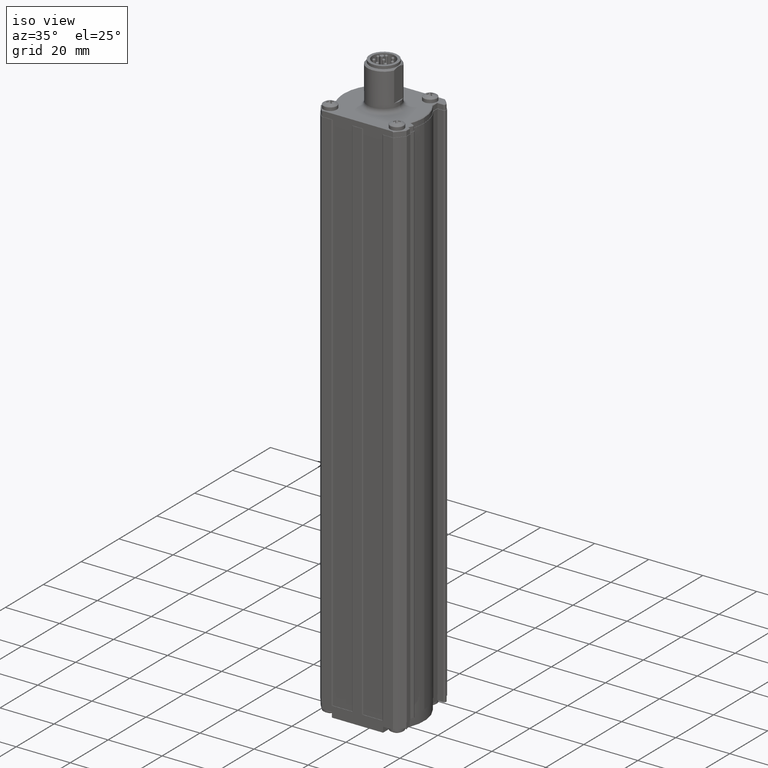
[diagram: clean part render]
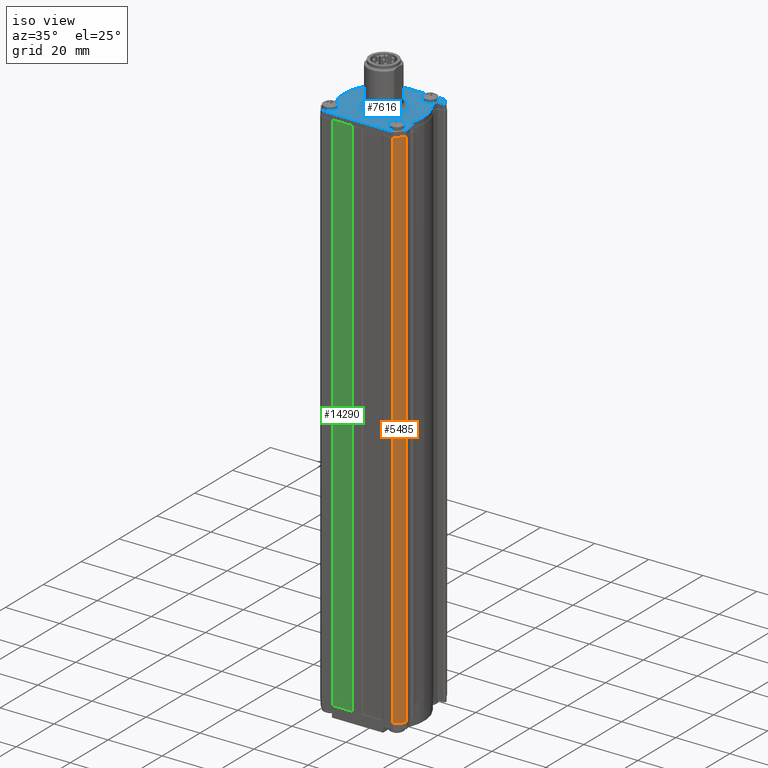
[diagram: same view with three faces highlighted in distinct colors, each labeled with its STEP entity id]
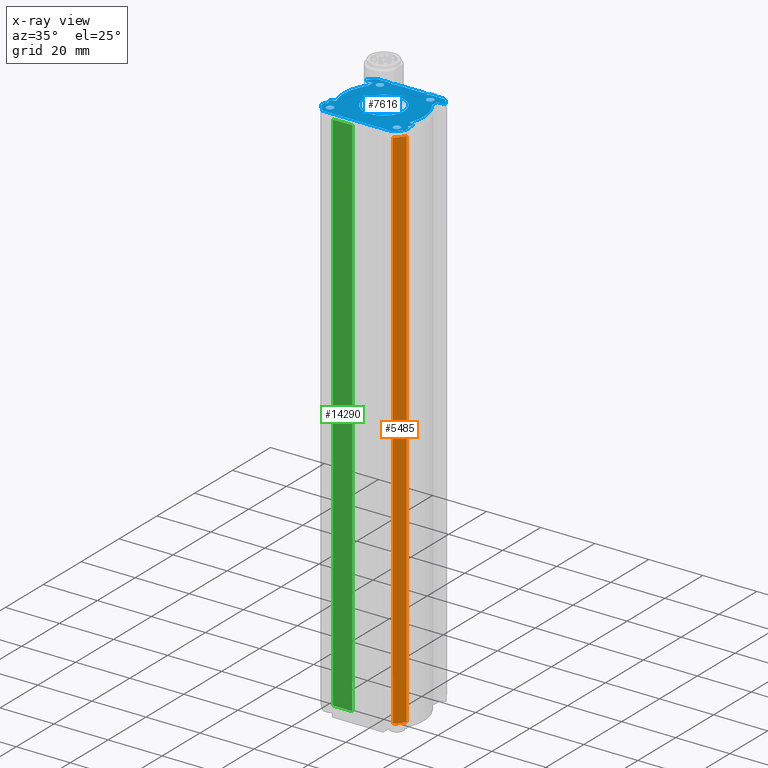
[diagram: x-ray of the same camera — body ghosted, the three highlighted faces saturated]
A machine part, iso view with three faces highlighted in distinct colors.
The next image is the same camera in x-ray (body ghosted, the three faces saturated) — at least one of them is partly hidden behind the body in this view.
Their STEP definitions:

[orange] entity #5485 — the highlighted cylindrical surface (partial cylindrical patch) has radius 19.25 mm, axis along (-0, 0, 1).
#83 = LINE ( 'NONE', #12793, #2938 ) ;
#1833 = EDGE_LOOP ( 'NONE', ( #4081, #12595, #15609, #5245 ) ) ;
#1915 = EDGE_CURVE ( 'NONE', #6531, #3093, #7012, .T. ) ;
#2655 = CYLINDRICAL_SURFACE ( 'NONE', #11659, 19.25000000000000000 ) ;
#2938 = VECTOR ( 'NONE', #14571, 1000.000000000000000 ) ;
#3093 = VERTEX_POINT ( 'NONE', #15743 ) ;
#3318 = CARTESIAN_POINT ( 'NONE',  ( 0.000000000000000000, -9.999999999999999799E-13, -1.999999999998947064 ) ) ;
#3708 = VERTEX_POINT ( 'NONE', #14768 ) ;
#4081 = ORIENTED_EDGE ( 'NONE', *, *, #1915, .T. ) ;
#5245 = ORIENTED_EDGE ( 'NONE', *, *, #16320, .T. ) ;
#5456 = CARTESIAN_POINT ( 'NONE',  ( 0.000000000000000000, -9.999999999999999799E-13, -197.9999999999989484 ) ) ;
#5485 = ADVANCED_FACE ( 'NONE', ( #12469 ), #2655, .T. ) ;
#5682 = CIRCLE ( 'NONE', #13147, 19.25000000000000000 ) ;
#5814 = DIRECTION ( 'NONE',  ( -0.000000000000000000, 0.000000000000000000, 1.000000000000000000 ) ) ;
#6531 = VERTEX_POINT ( 'NONE', #11390 ) ;
#7012 = CIRCLE ( 'NONE', #10305, 19.25000000000000000 ) ;
#7050 = CARTESIAN_POINT ( 'NONE',  ( 13.21221026172387525, -14.00000000000094680, -197.9999999999989484 ) ) ;
#7420 = DIRECTION ( 'NONE',  ( -1.000000000000000000, -4.000000000000003466E-15, 0.000000000000000000 ) ) ;
#7724 = EDGE_CURVE ( 'NONE', #3708, #14582, #5682, .T. ) ;
#8516 = CARTESIAN_POINT ( 'NONE',  ( 16.00000000000004263, -10.70338731430477530, -197.9999999999989484 ) ) ;
#9009 = DIRECTION ( 'NONE',  ( 0.000000000000000000, 0.000000000000000000, -1.000000000000000000 ) ) ;
#9657 = DIRECTION ( 'NONE',  ( -0.000000000000000000, 0.000000000000000000, 1.000000000000000000 ) ) ;
#9933 = LINE ( 'NONE', #8516, #14842 ) ;
#10079 = CARTESIAN_POINT ( 'NONE',  ( 0.000000000000000000, -9.999999999999999799E-13, -197.9999999999989484 ) ) ;
#10305 = AXIS2_PLACEMENT_3D ( 'NONE', #3318, #9009, #7420 ) ;
#10971 = DIRECTION ( 'NONE',  ( 1.000000000000000000, 4.000000000000003466E-15, 0.000000000000000000 ) ) ;
#11390 = CARTESIAN_POINT ( 'NONE',  ( 16.00000000000004263, -10.70338731430477530, -1.999999999998947064 ) ) ;
#11393 = DIRECTION ( 'NONE',  ( 0.000000000000000000, 0.000000000000000000, -1.000000000000000000 ) ) ;
#11659 = AXIS2_PLACEMENT_3D ( 'NONE', #5456, #9657, #10971 ) ;
#12469 = FACE_OUTER_BOUND ( 'NONE', #1833, .T. ) ;
#12595 = ORIENTED_EDGE ( 'NONE', *, *, #17661, .F. ) ;
#12793 = CARTESIAN_POINT ( 'NONE',  ( 13.21221026172387525, -14.00000000000094680, -197.9999999999989484 ) ) ;
#13147 = AXIS2_PLACEMENT_3D ( 'NONE', #10079, #11393, #15794 ) ;
#14571 = DIRECTION ( 'NONE',  ( -0.000000000000000000, 0.000000000000000000, 1.000000000000000000 ) ) ;
#14582 = VERTEX_POINT ( 'NONE', #7050 ) ;
#14768 = CARTESIAN_POINT ( 'NONE',  ( 16.00000000000004263, -10.70338731430477530, -197.9999999999989484 ) ) ;
#14842 = VECTOR ( 'NONE', #5814, 1000.000000000000000 ) ;
#15609 = ORIENTED_EDGE ( 'NONE', *, *, #7724, .F. ) ;
#15743 = CARTESIAN_POINT ( 'NONE',  ( 13.21221026172387525, -14.00000000000094680, -1.999999999998947064 ) ) ;
#15794 = DIRECTION ( 'NONE',  ( -1.000000000000000000, -4.000000000000003466E-15, 0.000000000000000000 ) ) ;
#16320 = EDGE_CURVE ( 'NONE', #3708, #6531, #9933, .T. ) ;
#17661 = EDGE_CURVE ( 'NONE', #14582, #3093, #83, .T. ) ;

[blue] entity #7616 — the highlighted planar face has unit normal (-0, 0, -1).
#29 = CARTESIAN_POINT ( 'NONE',  ( -14.63668049820835115, -8.448525551442942927, 0.000000000000000000 ) ) ;
#44 = VECTOR ( 'NONE', #212, 1000.000000000000000 ) ;
#100 = CARTESIAN_POINT ( 'NONE',  ( 11.94999999999999218, 8.560811877385422264, 0.000000000000000000 ) ) ;
#106 = DIRECTION ( 'NONE',  ( 1.000000000000000078E-15, -1.000000000000000000, 0.000000000000000000 ) ) ;
#212 = DIRECTION ( 'NONE',  ( 1.000000000000000000, 8.533520049141744836E-16, -0.000000000000000000 ) ) ;
#303 = DIRECTION ( 'NONE',  ( -0.000000000000000000, 0.000000000000000000, 1.000000000000000000 ) ) ;
#329 = CIRCLE ( 'NONE', #14961, 0.2999999999999947153 ) ;
#351 = CARTESIAN_POINT ( 'NONE',  ( 9.299999999999988276, 11.24999999999900879, 0.000000000000000000 ) ) ;
#468 = CIRCLE ( 'NONE', #10914, 1.299999999999999156 ) ;
#547 = VERTEX_POINT ( 'NONE', #4440 ) ;
#577 = VERTEX_POINT ( 'NONE', #8822 ) ;
#619 = ORIENTED_EDGE ( 'NONE', *, *, #17704, .F. ) ;
#680 = ORIENTED_EDGE ( 'NONE', *, *, #944, .F. ) ;
#780 = ORIENTED_EDGE ( 'NONE', *, *, #885, .T. ) ;
#848 = EDGE_CURVE ( 'NONE', #3926, #547, #11153, .T. ) ;
#856 = AXIS2_PLACEMENT_3D ( 'NONE', #14588, #3368, #7654 ) ;
#857 = VECTOR ( 'NONE', #18265, 1000.000000000000000 ) ;
#885 = EDGE_CURVE ( 'NONE', #13658, #3611, #6000, .T. ) ;
#921 = ORIENTED_EDGE ( 'NONE', *, *, #17668, .T. ) ;
#944 = EDGE_CURVE ( 'NONE', #13077, #16229, #15034, .T. ) ;
#979 = EDGE_CURVE ( 'NONE', #3611, #11704, #1883, .T. ) ;
#1038 = EDGE_CURVE ( 'NONE', #4096, #10235, #13736, .T. ) ;
#1048 = VERTEX_POINT ( 'NONE', #3456 ) ;
#1068 = DIRECTION ( 'NONE',  ( -0.000000000000000000, 0.000000000000000000, 1.000000000000000000 ) ) ;
#1101 = LINE ( 'NONE', #16921, #16613 ) ;
#1143 = ORIENTED_EDGE ( 'NONE', *, *, #9157, .T. ) ;
#1391 = CARTESIAN_POINT ( 'NONE',  ( 15.69999999999999929, -9.843138737920049907E-13, 0.000000000000000000 ) ) ;
#1399 = VERTEX_POINT ( 'NONE', #1842 ) ;
#1437 = EDGE_CURVE ( 'NONE', #6988, #2430, #4298, .T. ) ;
#1549 = CARTESIAN_POINT ( 'NONE',  ( -14.65000000000001279, 11.44999999999898677, 0.000000000000000000 ) ) ;
#1556 = VERTEX_POINT ( 'NONE', #3976 ) ;
#1573 = FACE_BOUND ( 'NONE', #16758, .T. ) ;
#1613 = CARTESIAN_POINT ( 'NONE',  ( 12.87992624202483327, -13.90000000000098623, 0.000000000000000000 ) ) ;
#1652 = CARTESIAN_POINT ( 'NONE',  ( 14.34999999999998721, 11.44999999999901519, 0.000000000000000000 ) ) ;
#1715 = ORIENTED_EDGE ( 'NONE', *, *, #1437, .T. ) ;
#1759 = DIRECTION ( 'NONE',  ( -0.000000000000000000, 0.000000000000000000, 1.000000000000000000 ) ) ;
#1842 = CARTESIAN_POINT ( 'NONE',  ( 14.64999999999998792, 11.44999999999901519, 0.000000000000000000 ) ) ;
#1843 = DIRECTION ( 'NONE',  ( -0.000000000000000000, 0.000000000000000000, 1.000000000000000000 ) ) ;
#1867 = CIRCLE ( 'NONE', #18302, 1.299999999999999156 ) ;
#1883 = CIRCLE ( 'NONE', #4270, 14.69999999999999929 ) ;
#1962 = VERTEX_POINT ( 'NONE', #6022 ) ;
#1972 = VECTOR ( 'NONE', #12421, 999.9999999999998863 ) ;
#2033 = AXIS2_PLACEMENT_3D ( 'NONE', #11578, #1759, #12978 ) ;
#2049 = AXIS2_PLACEMENT_3D ( 'NONE', #8826, #17180, #10055 ) ;
#2109 = ORIENTED_EDGE ( 'NONE', *, *, #8394, .T. ) ;
#2338 = CARTESIAN_POINT ( 'NONE',  ( 15.30989780377040788, -6.412833597942434238, 0.000000000000000000 ) ) ;
#2350 = CARTESIAN_POINT ( 'NONE',  ( -14.35000000000001208, 11.44999999999898677, 0.000000000000000000 ) ) ;
#2380 = DIRECTION ( 'NONE',  ( 1.000000000000000000, 1.334402673828314029E-15, 0.000000000000000000 ) ) ;
#2430 = VERTEX_POINT ( 'NONE', #8012 ) ;
#2464 = CIRCLE ( 'NONE', #13208, 7.500000000000000000 ) ;
#2509 = CARTESIAN_POINT ( 'NONE',  ( 0.1686541691351557959, -0.3066851337022108992, 0.000000000000000000 ) ) ;
#2522 = CARTESIAN_POINT ( 'NONE',  ( -6.500000000000014211, 14.74999999999899281, 0.000000000000000000 ) ) ;
#2532 = EDGE_CURVE ( 'NONE', #7232, #13472, #3593, .T. ) ;
#2582 = CIRCLE ( 'NONE', #8828, 1.299999999999999156 ) ;
#2677 = CARTESIAN_POINT ( 'NONE',  ( 0.000000000000000000, -1.000013873792005015E-12, 0.000000000000000000 ) ) ;
#2684 = VERTEX_POINT ( 'NONE', #8848 ) ;
#2836 = CARTESIAN_POINT ( 'NONE',  ( 0.03087135178059822668, 0.07272834712750111952, 0.000000000000000000 ) ) ;
#2906 = EDGE_CURVE ( 'NONE', #10209, #11727, #10746, .T. ) ;
#3108 = VECTOR ( 'NONE', #12333, 1000.000000000000000 ) ;
#3352 = ORIENTED_EDGE ( 'NONE', *, *, #3691, .T. ) ;
#3368 = DIRECTION ( 'NONE',  ( -0.000000000000000000, 0.000000000000000000, 1.000000000000000000 ) ) ;
#3440 = CARTESIAN_POINT ( 'NONE',  ( -15.16660934841539365, -6.747885659417485194, 0.000000000000000000 ) ) ;
#3441 = ORIENTED_EDGE ( 'NONE', *, *, #1038, .T. ) ;
#3456 = CARTESIAN_POINT ( 'NONE',  ( -14.69999999999999929, -1.014713873792004942E-12, 0.000000000000000000 ) ) ;
#3487 = CIRCLE ( 'NONE', #5873, 18.89999999999999858 ) ;
#3533 = VECTOR ( 'NONE', #11302, 1000.000000000000000 ) ;
#3558 = DIRECTION ( 'NONE',  ( -0.000000000000000000, 0.000000000000000000, 1.000000000000000000 ) ) ;
#3593 = CIRCLE ( 'NONE', #10447, 7.500000000000000000 ) ;
#3611 = VERTEX_POINT ( 'NONE', #17041 ) ;
#3675 = VECTOR ( 'NONE', #15370, 1000.000000000000000 ) ;
#3691 = EDGE_CURVE ( 'NONE', #547, #1048, #17295, .T. ) ;
#3704 = EDGE_CURVE ( 'NONE', #18197, #13865, #6221, .T. ) ;
#3710 = DIRECTION ( 'NONE',  ( 1.000000000000000000, 8.533520049141744836E-16, -0.000000000000000000 ) ) ;
#3755 = VERTEX_POINT ( 'NONE', #8873 ) ;
#3782 = CARTESIAN_POINT ( 'NONE',  ( 7.999999999999989342, 11.24999999999900879, 0.000000000000000000 ) ) ;
#3796 = DIRECTION ( 'NONE',  ( -1.000000000000000000, -1.000000000000003036E-15, 0.000000000000000000 ) ) ;
#3814 = CARTESIAN_POINT ( 'NONE',  ( 0.000000000000000000, -1.000013873792005015E-12, 0.000000000000000000 ) ) ;
#3926 = VERTEX_POINT ( 'NONE', #17863 ) ;
#3958 = CARTESIAN_POINT ( 'NONE',  ( -11.95000000000000107, -9.941330519336953010E-13, 0.000000000000000000 ) ) ;
#3976 = CARTESIAN_POINT ( 'NONE',  ( 10.59999999999998899, 11.24999999999901057, 0.000000000000000000 ) ) ;
#4028 = CARTESIAN_POINT ( 'NONE',  ( -1.115000000000000171E-14, 11.14999999999900027, 0.000000000000000000 ) ) ;
#4061 = EDGE_CURVE ( 'NONE', #9686, #17305, #7710, .T. ) ;
#4096 = VERTEX_POINT ( 'NONE', #13599 ) ;
#4122 = VECTOR ( 'NONE', #16821, 1000.000000000000000 ) ;
#4128 = ORIENTED_EDGE ( 'NONE', *, *, #17468, .T. ) ;
#4216 = AXIS2_PLACEMENT_3D ( 'NONE', #3440, #6059, #7544 ) ;
#4270 = AXIS2_PLACEMENT_3D ( 'NONE', #13016, #4413, #14241 ) ;
#4298 = CIRCLE ( 'NONE', #8473, 18.95000000000000284 ) ;
#4321 = CARTESIAN_POINT ( 'NONE',  ( 12.52946527191002524, 14.14999999999901270, 0.000000000000000000 ) ) ;
#4407 = CIRCLE ( 'NONE', #5597, 1.299999999999999156 ) ;
#4413 = DIRECTION ( 'NONE',  ( -0.000000000000000000, 0.000000000000000000, 1.000000000000000000 ) ) ;
#4440 = CARTESIAN_POINT ( 'NONE',  ( -11.95000000000000995, 8.560811877385379631, 0.000000000000000000 ) ) ;
#4480 = AXIS2_PLACEMENT_3D ( 'NONE', #12976, #5781, #16935 ) ;
#4725 = VERTEX_POINT ( 'NONE', #6828 ) ;
#4748 = LINE ( 'NONE', #4932, #10713 ) ;
#4856 = CARTESIAN_POINT ( 'NONE',  ( 0.03999999999999753059, 0.06928203230175072891, 0.000000000000000000 ) ) ;
#4909 = DIRECTION ( 'NONE',  ( -1.000000000000000000, -2.891205793294729504E-15, 0.000000000000000000 ) ) ;
#4919 = CARTESIAN_POINT ( 'NONE',  ( 0.000000000000000000, -1.000013873792005015E-12, 0.000000000000000000 ) ) ;
#4923 = CARTESIAN_POINT ( 'NONE',  ( 12.37500000000001066, -10.70000000000098694, 0.000000000000000000 ) ) ;
#4932 = CARTESIAN_POINT ( 'NONE',  ( 12.82916599004002478, 14.14999999999901270, 0.000000000000000000 ) ) ;
#4941 = CARTESIAN_POINT ( 'NONE',  ( -15.46660934841539259, -6.747885659417486082, 0.000000000000000000 ) ) ;
#5072 = AXIS2_PLACEMENT_3D ( 'NONE', #10991, #8087, #10809 ) ;
#5131 = DIRECTION ( 'NONE',  ( -0.8660254037844389297, 0.4999999999999993894, 0.000000000000000000 ) ) ;
#5212 = ORIENTED_EDGE ( 'NONE', *, *, #15679, .F. ) ;
#5249 = AXIS2_PLACEMENT_3D ( 'NONE', #9053, #6158, #17856 ) ;
#5317 = CIRCLE ( 'NONE', #2033, 14.69999999999999929 ) ;
#5590 = DIRECTION ( 'NONE',  ( -1.000000000000000000, -1.000000000000003036E-15, 0.000000000000000000 ) ) ;
#5597 = AXIS2_PLACEMENT_3D ( 'NONE', #17233, #15727, #6175 ) ;
#5781 = DIRECTION ( 'NONE',  ( -0.000000000000000000, 0.000000000000000000, -1.000000000000000000 ) ) ;
#5873 = AXIS2_PLACEMENT_3D ( 'NONE', #17084, #11269, #8640 ) ;
#5889 = CARTESIAN_POINT ( 'NONE',  ( -15.16660934841539365, -6.747885659417485194, 0.000000000000000000 ) ) ;
#5932 = AXIS2_PLACEMENT_3D ( 'NONE', #351, #1843, #10537 ) ;
#6000 = LINE ( 'NONE', #2836, #11753 ) ;
#6019 = EDGE_CURVE ( 'NONE', #8093, #14991, #7098, .T. ) ;
#6022 = CARTESIAN_POINT ( 'NONE',  ( 15.70000000000000995, -8.972023183207793906, 0.000000000000000000 ) ) ;
#6059 = DIRECTION ( 'NONE',  ( -0.000000000000000000, 0.000000000000000000, 1.000000000000000000 ) ) ;
#6091 = CARTESIAN_POINT ( 'NONE',  ( 14.34999999999998899, 11.14999999999901448, 0.000000000000000000 ) ) ;
#6129 = ORIENTED_EDGE ( 'NONE', *, *, #12351, .T. ) ;
#6158 = DIRECTION ( 'NONE',  ( -0.000000000000000000, 0.000000000000000000, 1.000000000000000000 ) ) ;
#6175 = DIRECTION ( 'NONE',  ( 1.000000000000000000, 1.334402673828314029E-15, 0.000000000000000000 ) ) ;
#6199 = VERTEX_POINT ( 'NONE', #17687 ) ;
#6221 = CIRCLE ( 'NONE', #17001, 0.3000000000000051514 ) ;
#6248 = EDGE_LOOP ( 'NONE', ( #3441, #13307, #11422, #1715, #4128, #1143, #11401, #2109, #780, #15596, #9860, #7412, #14805, #14070, #6129, #13313, #680, #619, #8716, #6883, #10080, #12369, #7187, #12870, #14809, #3352, #921, #16225, #13678, #12146, #6612, #8696 ) ) ;
#6543 = DIRECTION ( 'NONE',  ( 1.000000000000000000, 1.734723475976807094E-15, 0.000000000000000000 ) ) ;
#6596 = EDGE_CURVE ( 'NONE', #1556, #8438, #8603, .T. ) ;
#6612 = ORIENTED_EDGE ( 'NONE', *, *, #7391, .T. ) ;
#6636 = EDGE_CURVE ( 'NONE', #14991, #3926, #13069, .T. ) ;
#6709 = LINE ( 'NONE', #2509, #1972 ) ;
#6828 = CARTESIAN_POINT ( 'NONE',  ( -5.700000000000014388, 14.14999999999899494, 0.000000000000000000 ) ) ;
#6847 = CARTESIAN_POINT ( 'NONE',  ( 7.299999999999986500, 14.14999999999900737, 0.000000000000000000 ) ) ;
#6883 = ORIENTED_EDGE ( 'NONE', *, *, #15511, .F. ) ;
#6903 = PLANE ( 'NONE',  #4480 ) ;
#6988 = VERTEX_POINT ( 'NONE', #1613 ) ;
#7098 = CIRCLE ( 'NONE', #15485, 0.3000000000000051514 ) ;
#7166 = EDGE_LOOP ( 'NONE', ( #17467, #8632 ) ) ;
#7187 = ORIENTED_EDGE ( 'NONE', *, *, #6019, .T. ) ;
#7194 = AXIS2_PLACEMENT_3D ( 'NONE', #11882, #3558, #16199 ) ;
#7197 = DIRECTION ( 'NONE',  ( -0.000000000000000000, 0.000000000000000000, 1.000000000000000000 ) ) ;
#7215 = DIRECTION ( 'NONE',  ( -0.9205048534524431503, 0.3907311284892669434, 0.000000000000000000 ) ) ;
#7232 = VERTEX_POINT ( 'NONE', #17323 ) ;
#7262 = DIRECTION ( 'NONE',  ( -1.000000000000000000, 0.000000000000000000, 0.000000000000000000 ) ) ;
#7273 = FACE_BOUND ( 'NONE', #17257, .T. ) ;
#7346 = CIRCLE ( 'NONE', #18397, 0.2999999999999947153 ) ;
#7370 = VERTEX_POINT ( 'NONE', #9158 ) ;
#7391 = EDGE_CURVE ( 'NONE', #12281, #11394, #13132, .T. ) ;
#7412 = ORIENTED_EDGE ( 'NONE', *, *, #18251, .T. ) ;
#7479 = DIRECTION ( 'NONE',  ( -1.000000000000000000, -9.999999999999965278E-16, 0.000000000000000000 ) ) ;
#7544 = DIRECTION ( 'NONE',  ( -1.000000000000000000, 0.000000000000000000, 0.000000000000000000 ) ) ;
#7616 = ADVANCED_FACE ( 'NONE', ( #1573, #7273, #14482, #11575, #8761, #17300 ), #6903, .F. ) ;
#7654 = DIRECTION ( 'NONE',  ( -1.000000000000000000, -6.329070518200756599E-15, 0.000000000000000000 ) ) ;
#7680 = CARTESIAN_POINT ( 'NONE',  ( 0.000000000000000000, -1.000013873792005015E-12, 0.000000000000000000 ) ) ;
#7710 = CIRCLE ( 'NONE', #2049, 1.299999999999999156 ) ;
#7776 = DIRECTION ( 'NONE',  ( -1.000000000000000000, -9.999999999999985000E-16, 0.000000000000000000 ) ) ;
#8012 = CARTESIAN_POINT ( 'NONE',  ( 15.70000000000000995, -10.61190369349538365, 0.000000000000000000 ) ) ;
#8087 = DIRECTION ( 'NONE',  ( -0.000000000000000000, 0.000000000000000000, 1.000000000000000000 ) ) ;
#8093 = VERTEX_POINT ( 'NONE', #1549 ) ;
#8187 = CARTESIAN_POINT ( 'NONE',  ( 14.65000000000000036, -9.853638737920050721E-13, 0.000000000000000000 ) ) ;
#8196 = ORIENTED_EDGE ( 'NONE', *, *, #17165, .F. ) ;
#8221 = CIRCLE ( 'NONE', #5249, 18.89999999999999858 ) ;
#8264 = CARTESIAN_POINT ( 'NONE',  ( 11.07500000000000995, -10.70000000000098872, 0.000000000000000000 ) ) ;
#8290 = VERTEX_POINT ( 'NONE', #16335 ) ;
#8394 = EDGE_CURVE ( 'NONE', #10344, #13658, #329, .T. ) ;
#8429 = CARTESIAN_POINT ( 'NONE',  ( -8.000000000000010658, 11.24999999999899103, 0.000000000000000000 ) ) ;
#8438 = VERTEX_POINT ( 'NONE', #3782 ) ;
#8473 = AXIS2_PLACEMENT_3D ( 'NONE', #4919, #16160, #13251 ) ;
#8603 = CIRCLE ( 'NONE', #5932, 1.299999999999999156 ) ;
#8632 = ORIENTED_EDGE ( 'NONE', *, *, #11159, .F. ) ;
#8640 = DIRECTION ( 'NONE',  ( -1.000000000000000000, -1.888178419700119788E-15, 0.000000000000000000 ) ) ;
#8642 = EDGE_CURVE ( 'NONE', #9408, #10344, #15270, .T. ) ;
#8696 = ORIENTED_EDGE ( 'NONE', *, *, #15333, .T. ) ;
#8716 = ORIENTED_EDGE ( 'NONE', *, *, #8787, .F. ) ;
#8740 = EDGE_CURVE ( 'NONE', #3755, #18197, #12435, .T. ) ;
#8761 = FACE_BOUND ( 'NONE', #17769, .T. ) ;
#8787 = EDGE_CURVE ( 'NONE', #7370, #4725, #17083, .T. ) ;
#8822 = CARTESIAN_POINT ( 'NONE',  ( 14.64999999999998792, 11.94100079557723504, 0.000000000000000000 ) ) ;
#8826 = CARTESIAN_POINT ( 'NONE',  ( -12.37499999999998934, -10.70000000000101004, 0.000000000000000000 ) ) ;
#8828 = AXIS2_PLACEMENT_3D ( 'NONE', #17657, #14838, #10989 ) ;
#8848 = CARTESIAN_POINT ( 'NONE',  ( -12.52946527191005366, 14.14999999999898783, 0.000000000000000000 ) ) ;
#8873 = CARTESIAN_POINT ( 'NONE',  ( -13.52083884382183498, -5.768614821550353433, 0.000000000000000000 ) ) ;
#8921 = EDGE_CURVE ( 'NONE', #6988, #12037, #11488, .T. ) ;
#8929 = CARTESIAN_POINT ( 'NONE',  ( 5.699999999999985967, 14.14999999999900560, 0.000000000000000000 ) ) ;
#9016 = EDGE_CURVE ( 'NONE', #13865, #12281, #14389, .T. ) ;
#9053 = CARTESIAN_POINT ( 'NONE',  ( 0.000000000000000000, -1.000013873792005015E-12, 0.000000000000000000 ) ) ;
#9157 = EDGE_CURVE ( 'NONE', #1962, #9408, #14957, .T. ) ;
#9158 = CARTESIAN_POINT ( 'NONE',  ( -7.300000000000014033, 14.14999999999899316, 0.000000000000000000 ) ) ;
#9330 = VERTEX_POINT ( 'NONE', #11108 ) ;
#9408 = VERTEX_POINT ( 'NONE', #16073 ) ;
#9505 = EDGE_CURVE ( 'NONE', #6199, #14467, #17983, .T. ) ;
#9633 = EDGE_CURVE ( 'NONE', #13472, #7232, #2464, .T. ) ;
#9686 = VERTEX_POINT ( 'NONE', #15308 ) ;
#9695 = DIRECTION ( 'NONE',  ( 1.000000000000000000, 1.334402673828314029E-15, 0.000000000000000000 ) ) ;
#9697 = ORIENTED_EDGE ( 'NONE', *, *, #15254, .F. ) ;
#9860 = ORIENTED_EDGE ( 'NONE', *, *, #14002, .T. ) ;
#9885 = LINE ( 'NONE', #15600, #11829 ) ;
#10055 = DIRECTION ( 'NONE',  ( 1.000000000000000000, 1.334402673828314029E-15, 0.000000000000000000 ) ) ;
#10080 = ORIENTED_EDGE ( 'NONE', *, *, #15921, .T. ) ;
#10110 = ORIENTED_EDGE ( 'NONE', *, *, #9633, .T. ) ;
#10207 = VERTEX_POINT ( 'NONE', #4321 ) ;
#10209 = VERTEX_POINT ( 'NONE', #8429 ) ;
#10212 = EDGE_CURVE ( 'NONE', #16229, #10207, #14335, .T. ) ;
#10235 = VERTEX_POINT ( 'NONE', #15648 ) ;
#10282 = VERTEX_POINT ( 'NONE', #6091 ) ;
#10344 = VERTEX_POINT ( 'NONE', #14790 ) ;
#10374 = CARTESIAN_POINT ( 'NONE',  ( -14.35000000000001030, 11.14999999999898783, 0.000000000000000000 ) ) ;
#10447 = AXIS2_PLACEMENT_3D ( 'NONE', #3814, #15421, #5590 ) ;
#10537 = DIRECTION ( 'NONE',  ( 1.000000000000000000, 1.334402673828314029E-15, 0.000000000000000000 ) ) ;
#10647 = ORIENTED_EDGE ( 'NONE', *, *, #4061, .F. ) ;
#10713 = VECTOR ( 'NONE', #3710, 1000.000000000000000 ) ;
#10746 = CIRCLE ( 'NONE', #5072, 1.299999999999999156 ) ;
#10809 = DIRECTION ( 'NONE',  ( 1.000000000000000000, 1.334402673828314029E-15, 0.000000000000000000 ) ) ;
#10825 = DIRECTION ( 'NONE',  ( -1.000000000000000078E-15, 1.000000000000000000, 0.000000000000000000 ) ) ;
#10834 = CARTESIAN_POINT ( 'NONE',  ( -15.65000000000000036, -1.015663873792005054E-12, 0.000000000000000000 ) ) ;
#10914 = AXIS2_PLACEMENT_3D ( 'NONE', #16646, #13915, #9695 ) ;
#10989 = DIRECTION ( 'NONE',  ( 1.000000000000000000, 1.334402673828314029E-15, 0.000000000000000000 ) ) ;
#10991 = CARTESIAN_POINT ( 'NONE',  ( -9.300000000000009592, 11.24999999999899103, 0.000000000000000000 ) ) ;
#11025 = LINE ( 'NONE', #1391, #3533 ) ;
#11108 = CARTESIAN_POINT ( 'NONE',  ( 11.94999999999999041, 11.14999999999901270, 0.000000000000000000 ) ) ;
#11153 = LINE ( 'NONE', #3958, #3675 ) ;
#11159 = EDGE_CURVE ( 'NONE', #11727, #10209, #1867, .T. ) ;
#11247 = CARTESIAN_POINT ( 'NONE',  ( 12.82916599004002478, 14.14999999999901270, 0.000000000000000000 ) ) ;
#11269 = DIRECTION ( 'NONE',  ( -0.000000000000000000, 0.000000000000000000, 1.000000000000000000 ) ) ;
#11302 = DIRECTION ( 'NONE',  ( -1.000000000000000078E-15, 1.000000000000000000, 0.000000000000000000 ) ) ;
#11394 = VERTEX_POINT ( 'NONE', #29 ) ;
#11401 = ORIENTED_EDGE ( 'NONE', *, *, #8642, .T. ) ;
#11422 = ORIENTED_EDGE ( 'NONE', *, *, #8921, .F. ) ;
#11464 = CIRCLE ( 'NONE', #17158, 18.89999999999999858 ) ;
#11488 = LINE ( 'NONE', #17029, #11994 ) ;
#11494 = VECTOR ( 'NONE', #106, 1000.000000000000000 ) ;
#11575 = FACE_BOUND ( 'NONE', #7166, .T. ) ;
#11578 = CARTESIAN_POINT ( 'NONE',  ( 0.000000000000000000, -1.000013873792005015E-12, 0.000000000000000000 ) ) ;
#11635 = AXIS2_PLACEMENT_3D ( 'NONE', #12062, #11783, #7479 ) ;
#11704 = VERTEX_POINT ( 'NONE', #100 ) ;
#11727 = VERTEX_POINT ( 'NONE', #18432 ) ;
#11753 = VECTOR ( 'NONE', #7215, 1000.000000000000000 ) ;
#11783 = DIRECTION ( 'NONE',  ( -0.000000000000000000, 0.000000000000000000, 1.000000000000000000 ) ) ;
#11829 = VECTOR ( 'NONE', #12782, 1000.000000000000000 ) ;
#11882 = CARTESIAN_POINT ( 'NONE',  ( 0.000000000000000000, -1.000013873792005015E-12, 0.000000000000000000 ) ) ;
#11886 = CARTESIAN_POINT ( 'NONE',  ( -7.500000000000000000, -1.007513873792005134E-12, 0.000000000000000000 ) ) ;
#11969 = DIRECTION ( 'NONE',  ( -1.000000000000000000, 0.000000000000000000, 0.000000000000000000 ) ) ;
#11994 = VECTOR ( 'NONE', #12979, 1000.000000000000000 ) ;
#12037 = VERTEX_POINT ( 'NONE', #13351 ) ;
#12062 = CARTESIAN_POINT ( 'NONE',  ( 0.000000000000000000, -1.000013873792005015E-12, 0.000000000000000000 ) ) ;
#12146 = ORIENTED_EDGE ( 'NONE', *, *, #9016, .T. ) ;
#12219 = DIRECTION ( 'NONE',  ( 1.000000000000000000, 1.334402673828314029E-15, 0.000000000000000000 ) ) ;
#12281 = VERTEX_POINT ( 'NONE', #15073 ) ;
#12333 = DIRECTION ( 'NONE',  ( 1.000000000000000078E-15, -1.000000000000000000, 0.000000000000000000 ) ) ;
#12351 = EDGE_CURVE ( 'NONE', #577, #10207, #11464, .T. ) ;
#12369 = ORIENTED_EDGE ( 'NONE', *, *, #13328, .T. ) ;
#12421 = DIRECTION ( 'NONE',  ( -0.8762432391463194081, -0.4818690546718748524, 0.000000000000000000 ) ) ;
#12435 = LINE ( 'NONE', #17966, #15888 ) ;
#12578 = AXIS2_PLACEMENT_3D ( 'NONE', #2522, #18325, #6543 ) ;
#12616 = ORIENTED_EDGE ( 'NONE', *, *, #9505, .F. ) ;
#12782 = DIRECTION ( 'NONE',  ( 1.000000000000000000, 8.533520049141744836E-16, -0.000000000000000000 ) ) ;
#12870 = ORIENTED_EDGE ( 'NONE', *, *, #6636, .T. ) ;
#12915 = LINE ( 'NONE', #15827, #11494 ) ;
#12976 = CARTESIAN_POINT ( 'NONE',  ( 0.000000000000000000, -1.000013873792005015E-12, 0.000000000000000000 ) ) ;
#12978 = DIRECTION ( 'NONE',  ( -1.000000000000000000, -1.000000000000001458E-15, 0.000000000000000000 ) ) ;
#12979 = DIRECTION ( 'NONE',  ( -1.000000000000000000, -1.000000000000000078E-15, 0.000000000000000000 ) ) ;
#13016 = CARTESIAN_POINT ( 'NONE',  ( 0.000000000000000000, -1.000013873792005015E-12, 0.000000000000000000 ) ) ;
#13069 = LINE ( 'NONE', #15889, #16699 ) ;
#13077 = VERTEX_POINT ( 'NONE', #8929 ) ;
#13132 = CIRCLE ( 'NONE', #11635, 16.89999999999999858 ) ;
#13208 = AXIS2_PLACEMENT_3D ( 'NONE', #2677, #16627, #3796 ) ;
#13251 = DIRECTION ( 'NONE',  ( -1.000000000000000000, -1.000000000000002050E-15, 0.000000000000000000 ) ) ;
#13307 = ORIENTED_EDGE ( 'NONE', *, *, #13863, .T. ) ;
#13313 = ORIENTED_EDGE ( 'NONE', *, *, #10212, .F. ) ;
#13328 = EDGE_CURVE ( 'NONE', #8290, #8093, #12915, .T. ) ;
#13351 = CARTESIAN_POINT ( 'NONE',  ( -12.80624847486568640, -13.90000000000101110, 0.000000000000000000 ) ) ;
#13472 = VERTEX_POINT ( 'NONE', #11886 ) ;
#13599 = CARTESIAN_POINT ( 'NONE',  ( -15.64999999999998970, -9.005776424938554570, 0.000000000000000000 ) ) ;
#13658 = VERTEX_POINT ( 'NONE', #2338 ) ;
#13678 = ORIENTED_EDGE ( 'NONE', *, *, #3704, .T. ) ;
#13736 = LINE ( 'NONE', #10834, #3108 ) ;
#13863 = EDGE_CURVE ( 'NONE', #10235, #12037, #8221, .T. ) ;
#13865 = VERTEX_POINT ( 'NONE', #4941 ) ;
#13915 = DIRECTION ( 'NONE',  ( -0.000000000000000000, 0.000000000000000000, 1.000000000000000000 ) ) ;
#14002 = EDGE_CURVE ( 'NONE', #11704, #9330, #1101, .T. ) ;
#14022 = DIRECTION ( 'NONE',  ( -0.9288676078333055752, -0.3704118884674634793, 0.000000000000000000 ) ) ;
#14051 = ORIENTED_EDGE ( 'NONE', *, *, #2532, .T. ) ;
#14070 = ORIENTED_EDGE ( 'NONE', *, *, #17908, .T. ) ;
#14136 = LINE ( 'NONE', #4028, #857 ) ;
#14241 = DIRECTION ( 'NONE',  ( -1.000000000000000000, 7.763568394002546271E-16, 0.000000000000000000 ) ) ;
#14284 = DIRECTION ( 'NONE',  ( -0.000000000000000000, 0.000000000000000000, 1.000000000000000000 ) ) ;
#14335 = LINE ( 'NONE', #11247, #44 ) ;
#14389 = CIRCLE ( 'NONE', #4216, 0.3000000000000051514 ) ;
#14461 = EDGE_LOOP ( 'NONE', ( #8196, #10647 ) ) ;
#14467 = VERTEX_POINT ( 'NONE', #8264 ) ;
#14482 = FACE_BOUND ( 'NONE', #14461, .T. ) ;
#14588 = CARTESIAN_POINT ( 'NONE',  ( 0.000000000000000000, -1.000013873792005015E-12, 0.000000000000000000 ) ) ;
#14681 = DIRECTION ( 'NONE',  ( -0.000000000000000000, 0.000000000000000000, 1.000000000000000000 ) ) ;
#14790 = CARTESIAN_POINT ( 'NONE',  ( 15.46724494351080637, -6.809870326037994026, 0.000000000000000000 ) ) ;
#14805 = ORIENTED_EDGE ( 'NONE', *, *, #15477, .T. ) ;
#14809 = ORIENTED_EDGE ( 'NONE', *, *, #848, .T. ) ;
#14838 = DIRECTION ( 'NONE',  ( -0.000000000000000000, 0.000000000000000000, 1.000000000000000000 ) ) ;
#14957 = LINE ( 'NONE', #4856, #18292 ) ;
#14961 = AXIS2_PLACEMENT_3D ( 'NONE', #15102, #1068, #4909 ) ;
#14987 = CARTESIAN_POINT ( 'NONE',  ( -15.27773291495564223, -6.469225377067485461, 0.000000000000000000 ) ) ;
#14991 = VERTEX_POINT ( 'NONE', #10374 ) ;
#15034 = CIRCLE ( 'NONE', #17735, 1.000000000000000000 ) ;
#15073 = CARTESIAN_POINT ( 'NONE',  ( -15.44070469808559309, -6.869835400250314805, 0.000000000000000000 ) ) ;
#15102 = CARTESIAN_POINT ( 'NONE',  ( 15.19267846522365595, -6.688985053978164785, 0.000000000000000000 ) ) ;
#15254 = EDGE_CURVE ( 'NONE', #14467, #6199, #468, .T. ) ;
#15270 = CIRCLE ( 'NONE', #7194, 16.89999999999999858 ) ;
#15308 = CARTESIAN_POINT ( 'NONE',  ( -13.67499999999999005, -10.70000000000101181, 0.000000000000000000 ) ) ;
#15333 = EDGE_CURVE ( 'NONE', #11394, #4096, #6709, .T. ) ;
#15370 = DIRECTION ( 'NONE',  ( -4.921189839589619402E-16, -1.000000000000000000, 0.000000000000000000 ) ) ;
#15421 = DIRECTION ( 'NONE',  ( 0.000000000000000000, 0.000000000000000000, -1.000000000000000000 ) ) ;
#15477 = EDGE_CURVE ( 'NONE', #10282, #1399, #7346, .T. ) ;
#15485 = AXIS2_PLACEMENT_3D ( 'NONE', #2350, #7197, #17137 ) ;
#15511 = EDGE_CURVE ( 'NONE', #2684, #7370, #9885, .T. ) ;
#15596 = ORIENTED_EDGE ( 'NONE', *, *, #979, .T. ) ;
#15600 = CARTESIAN_POINT ( 'NONE',  ( 12.82916599004002478, 14.14999999999901270, 0.000000000000000000 ) ) ;
#15648 = CARTESIAN_POINT ( 'NONE',  ( -15.64999999999998970, -10.59657963684609427, 0.000000000000000000 ) ) ;
#15679 = EDGE_CURVE ( 'NONE', #8438, #1556, #2582, .T. ) ;
#15727 = DIRECTION ( 'NONE',  ( -0.000000000000000000, 0.000000000000000000, 1.000000000000000000 ) ) ;
#15827 = CARTESIAN_POINT ( 'NONE',  ( -14.65000000000000036, -1.014663873792004957E-12, 0.000000000000000000 ) ) ;
#15833 = DIRECTION ( 'NONE',  ( 1.000000000000000000, 1.734723475976807094E-15, 0.000000000000000000 ) ) ;
#15889 = CARTESIAN_POINT ( 'NONE',  ( -1.115000000000000171E-14, 11.14999999999900027, 0.000000000000000000 ) ) ;
#15888 = VECTOR ( 'NONE', #14022, 999.9999999999998863 ) ;
#15915 = CARTESIAN_POINT ( 'NONE',  ( -11.07499999999998863, -10.70000000000100826, 0.000000000000000000 ) ) ;
#15921 = EDGE_CURVE ( 'NONE', #2684, #8290, #3487, .T. ) ;
#16073 = CARTESIAN_POINT ( 'NONE',  ( 14.67566534189680816, -8.380623292611666386, 0.000000000000000000 ) ) ;
#16160 = DIRECTION ( 'NONE',  ( -0.000000000000000000, 0.000000000000000000, 1.000000000000000000 ) ) ;
#16199 = DIRECTION ( 'NONE',  ( -1.000000000000000000, 1.054631945610162124E-14, 0.000000000000000000 ) ) ;
#16225 = ORIENTED_EDGE ( 'NONE', *, *, #8740, .T. ) ;
#16229 = VERTEX_POINT ( 'NONE', #6847 ) ;
#16335 = CARTESIAN_POINT ( 'NONE',  ( -14.65000000000001279, 11.94100079557720662, 0.000000000000000000 ) ) ;
#16613 = VECTOR ( 'NONE', #10825, 1000.000000000000000 ) ;
#16627 = DIRECTION ( 'NONE',  ( 0.000000000000000000, 0.000000000000000000, -1.000000000000000000 ) ) ;
#16646 = CARTESIAN_POINT ( 'NONE',  ( 12.37500000000001066, -10.70000000000098694, 0.000000000000000000 ) ) ;
#16699 = VECTOR ( 'NONE', #17297, 1000.000000000000000 ) ;
#16727 = LINE ( 'NONE', #8187, #4122 ) ;
#16758 = EDGE_LOOP ( 'NONE', ( #16919, #5212 ) ) ;
#16821 = DIRECTION ( 'NONE',  ( -1.000000000000000078E-15, 1.000000000000000000, 0.000000000000000000 ) ) ;
#16919 = ORIENTED_EDGE ( 'NONE', *, *, #6596, .F. ) ;
#16921 = CARTESIAN_POINT ( 'NONE',  ( 11.95000000000000107, -9.880638737920050505E-13, 0.000000000000000000 ) ) ;
#16935 = DIRECTION ( 'NONE',  ( -1.000000000000000000, -1.000000000000000078E-15, 0.000000000000000000 ) ) ;
#17001 = AXIS2_PLACEMENT_3D ( 'NONE', #5889, #14681, #11969 ) ;
#17029 = CARTESIAN_POINT ( 'NONE',  ( 13.17241435728471366, -13.90000000000098446, 0.000000000000000000 ) ) ;
#17041 = CARTESIAN_POINT ( 'NONE',  ( 13.56209724686370599, -5.670936277778427126, 0.000000000000000000 ) ) ;
#17062 = CARTESIAN_POINT ( 'NONE',  ( 6.499999999999984901, 14.74999999999900702, 0.000000000000000000 ) ) ;
#17083 = CIRCLE ( 'NONE', #12578, 1.000000000000000000 ) ;
#17084 = CARTESIAN_POINT ( 'NONE',  ( 0.000000000000000000, -1.000013873792005015E-12, 0.000000000000000000 ) ) ;
#17137 = DIRECTION ( 'NONE',  ( -1.000000000000000000, 0.000000000000000000, 0.000000000000000000 ) ) ;
#17158 = AXIS2_PLACEMENT_3D ( 'NONE', #7680, #17714, #7776 ) ;
#17165 = EDGE_CURVE ( 'NONE', #17305, #9686, #4407, .T. ) ;
#17180 = DIRECTION ( 'NONE',  ( -0.000000000000000000, 0.000000000000000000, 1.000000000000000000 ) ) ;
#17233 = CARTESIAN_POINT ( 'NONE',  ( -12.37499999999998934, -10.70000000000101004, 0.000000000000000000 ) ) ;
#17257 = EDGE_LOOP ( 'NONE', ( #12616, #9697 ) ) ;
#17295 = CIRCLE ( 'NONE', #856, 14.69999999999999929 ) ;
#17297 = DIRECTION ( 'NONE',  ( 1.000000000000000000, 1.000000000000000078E-15, 0.000000000000000000 ) ) ;
#17300 = FACE_OUTER_BOUND ( 'NONE', #6248, .T. ) ;
#17305 = VERTEX_POINT ( 'NONE', #15915 ) ;
#17323 = CARTESIAN_POINT ( 'NONE',  ( 7.500000000000000000, -9.915953886926444952E-13, 0.000000000000000000 ) ) ;
#17467 = ORIENTED_EDGE ( 'NONE', *, *, #2906, .F. ) ;
#17468 = EDGE_CURVE ( 'NONE', #2430, #1962, #11025, .T. ) ;
#17657 = CARTESIAN_POINT ( 'NONE',  ( 9.299999999999988276, 11.24999999999900879, 0.000000000000000000 ) ) ;
#17668 = EDGE_CURVE ( 'NONE', #1048, #3755, #5317, .T. ) ;
#17687 = CARTESIAN_POINT ( 'NONE',  ( 13.67500000000000959, -10.70000000000098517, 0.000000000000000000 ) ) ;
#17699 = AXIS2_PLACEMENT_3D ( 'NONE', #4923, #17844, #12219 ) ;
#17704 = EDGE_CURVE ( 'NONE', #4725, #13077, #4748, .T. ) ;
#17714 = DIRECTION ( 'NONE',  ( -0.000000000000000000, 0.000000000000000000, 1.000000000000000000 ) ) ;
#17735 = AXIS2_PLACEMENT_3D ( 'NONE', #17062, #303, #15833 ) ;
#17769 = EDGE_LOOP ( 'NONE', ( #10110, #14051 ) ) ;
#17844 = DIRECTION ( 'NONE',  ( -0.000000000000000000, 0.000000000000000000, 1.000000000000000000 ) ) ;
#17856 = DIRECTION ( 'NONE',  ( -1.000000000000000000, -1.118215802998771873E-16, 0.000000000000000000 ) ) ;
#17863 = CARTESIAN_POINT ( 'NONE',  ( -11.95000000000001172, 11.14999999999898961, 0.000000000000000000 ) ) ;
#17908 = EDGE_CURVE ( 'NONE', #1399, #577, #16727, .T. ) ;
#17966 = CARTESIAN_POINT ( 'NONE',  ( 0.1296441609636193315, -0.3251036627426753811, 0.000000000000000000 ) ) ;
#17983 = CIRCLE ( 'NONE', #17699, 1.299999999999999156 ) ;
#18197 = VERTEX_POINT ( 'NONE', #14987 ) ;
#18251 = EDGE_CURVE ( 'NONE', #9330, #10282, #14136, .T. ) ;
#18265 = DIRECTION ( 'NONE',  ( 1.000000000000000000, 1.000000000000000078E-15, 0.000000000000000000 ) ) ;
#18283 = DIRECTION ( 'NONE',  ( -0.000000000000000000, 0.000000000000000000, 1.000000000000000000 ) ) ;
#18292 = VECTOR ( 'NONE', #5131, 1000.000000000000114 ) ;
#18302 = AXIS2_PLACEMENT_3D ( 'NONE', #18364, #18283, #2380 ) ;
#18325 = DIRECTION ( 'NONE',  ( -0.000000000000000000, 0.000000000000000000, 1.000000000000000000 ) ) ;
#18364 = CARTESIAN_POINT ( 'NONE',  ( -9.300000000000009592, 11.24999999999899103, 0.000000000000000000 ) ) ;
#18397 = AXIS2_PLACEMENT_3D ( 'NONE', #1652, #14284, #7262 ) ;
#18432 = CARTESIAN_POINT ( 'NONE',  ( -10.60000000000001030, 11.24999999999898925, 0.000000000000000000 ) ) ;

[green] entity #14290 — the highlighted planar face has unit normal (-0, 1, 0).
#342 = DIRECTION ( 'NONE',  ( -1.000000000000000000, -3.760727796416992463E-15, 0.000000000000000000 ) ) ;
#1632 = DIRECTION ( 'NONE',  ( -1.000000000000000000, -3.760727796416992463E-15, 0.000000000000000000 ) ) ;
#2424 = ORIENTED_EDGE ( 'NONE', *, *, #5302, .F. ) ;
#3254 = CARTESIAN_POINT ( 'NONE',  ( -1.999999999999944933, -13.75000000000100719, -197.9999999999989484 ) ) ;
#3882 = ORIENTED_EDGE ( 'NONE', *, *, #13462, .F. ) ;
#4655 = LINE ( 'NONE', #3254, #14740 ) ;
#4781 = CARTESIAN_POINT ( 'NONE',  ( -9.249999999999943157, -13.75000000000103562, -197.9999999999989484 ) ) ;
#4871 = DIRECTION ( 'NONE',  ( -0.000000000000000000, 0.000000000000000000, 1.000000000000000000 ) ) ;
#4917 = FACE_OUTER_BOUND ( 'NONE', #6567, .T. ) ;
#5150 = VERTEX_POINT ( 'NONE', #15880 ) ;
#5302 = EDGE_CURVE ( 'NONE', #17763, #17334, #12948, .T. ) ;
#6421 = CARTESIAN_POINT ( 'NONE',  ( -9.249999999999943157, -13.75000000000103562, -1.999999999998947064 ) ) ;
#6453 = CARTESIAN_POINT ( 'NONE',  ( -9.249999999999943157, -13.75000000000103562, -197.9999999999989484 ) ) ;
#6567 = EDGE_LOOP ( 'NONE', ( #17808, #3882, #2424, #11907 ) ) ;
#7733 = CARTESIAN_POINT ( 'NONE',  ( -1.999999999999944933, -13.75000000000100719, -197.9999999999989484 ) ) ;
#9121 = DIRECTION ( 'NONE',  ( -3.760727796416992463E-15, 1.000000000000000000, 0.000000000000000000 ) ) ;
#9312 = VECTOR ( 'NONE', #17937, 1000.000000000000000 ) ;
#10236 = CARTESIAN_POINT ( 'NONE',  ( -1.999999999999944933, -13.75000000000100719, -1.999999999998947064 ) ) ;
#10619 = PLANE ( 'NONE',  #17517 ) ;
#10708 = EDGE_CURVE ( 'NONE', #14697, #5150, #13091, .T. ) ;
#11907 = ORIENTED_EDGE ( 'NONE', *, *, #12032, .T. ) ;
#12032 = EDGE_CURVE ( 'NONE', #17763, #14697, #4655, .T. ) ;
#12259 = VECTOR ( 'NONE', #1632, 1000.000000000000000 ) ;
#12948 = LINE ( 'NONE', #15675, #12259 ) ;
#13091 = LINE ( 'NONE', #6421, #9312 ) ;
#13462 = EDGE_CURVE ( 'NONE', #17334, #5150, #13478, .T. ) ;
#13478 = LINE ( 'NONE', #4781, #15086 ) ;
#14290 = ADVANCED_FACE ( 'NONE', ( #4917 ), #10619, .F. ) ;
#14660 = DIRECTION ( 'NONE',  ( -0.000000000000000000, 0.000000000000000000, 1.000000000000000000 ) ) ;
#14697 = VERTEX_POINT ( 'NONE', #10236 ) ;
#14738 = CARTESIAN_POINT ( 'NONE',  ( -9.249999999999943157, -13.75000000000103562, -197.9999999999989484 ) ) ;
#14740 = VECTOR ( 'NONE', #14660, 1000.000000000000000 ) ;
#15086 = VECTOR ( 'NONE', #4871, 1000.000000000000000 ) ;
#15675 = CARTESIAN_POINT ( 'NONE',  ( -9.249999999999943157, -13.75000000000103562, -197.9999999999989484 ) ) ;
#15880 = CARTESIAN_POINT ( 'NONE',  ( -9.249999999999943157, -13.75000000000103562, -1.999999999998947064 ) ) ;
#17334 = VERTEX_POINT ( 'NONE', #6453 ) ;
#17517 = AXIS2_PLACEMENT_3D ( 'NONE', #14738, #9121, #342 ) ;
#17763 = VERTEX_POINT ( 'NONE', #7733 ) ;
#17808 = ORIENTED_EDGE ( 'NONE', *, *, #10708, .T. ) ;
#17937 = DIRECTION ( 'NONE',  ( -1.000000000000000000, -3.760727796416992463E-15, 0.000000000000000000 ) ) ;